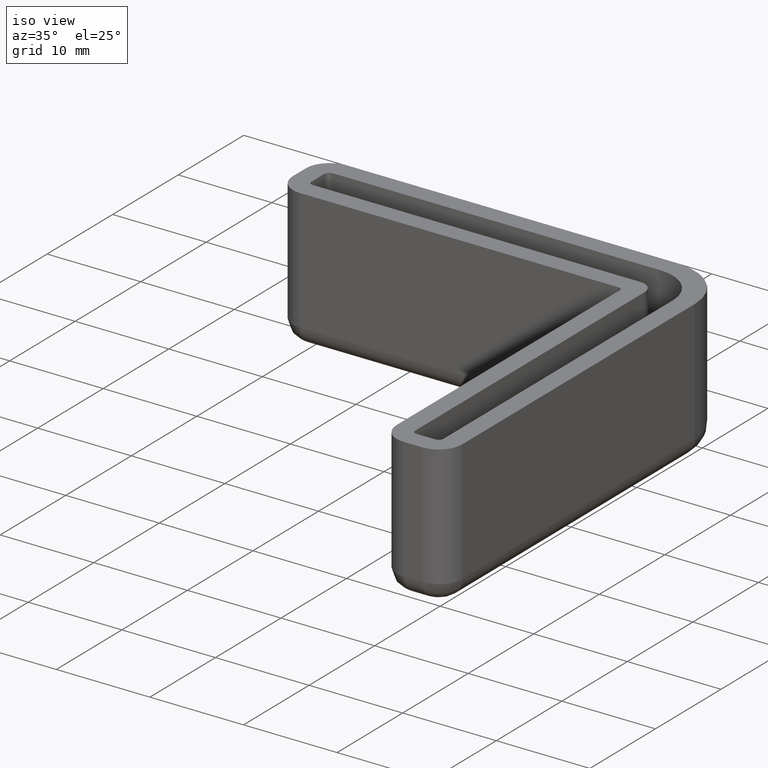
[diagram: clean part render]
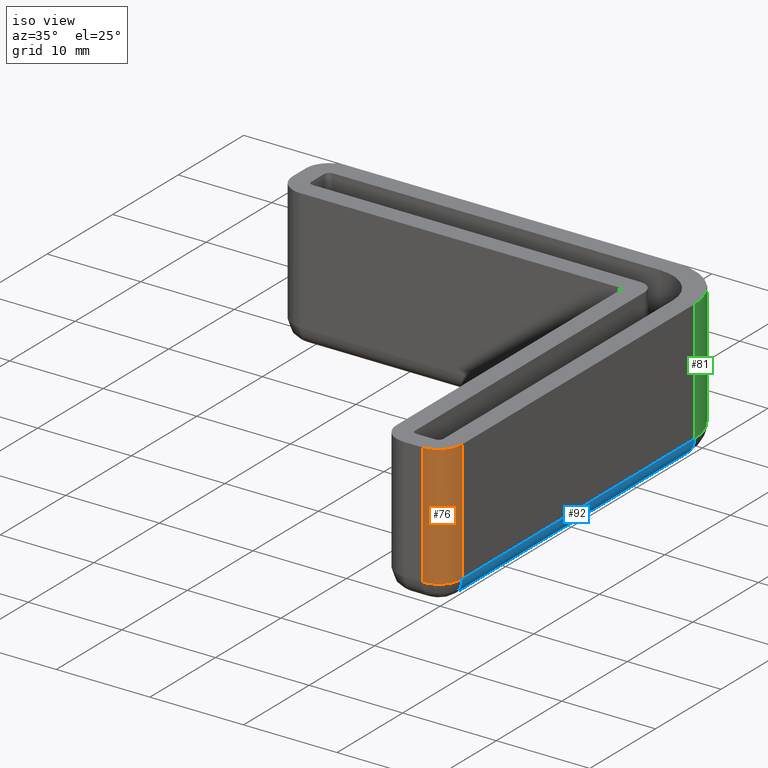
[diagram: same view with three faces highlighted in distinct colors, each labeled with its STEP entity id]
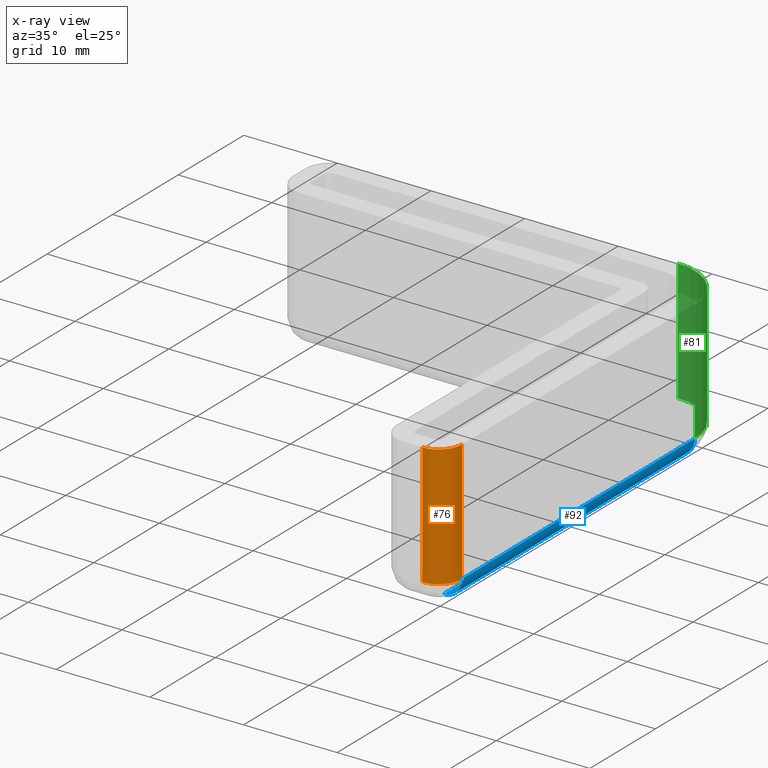
[diagram: x-ray of the same camera — body ghosted, the three highlighted faces saturated]
A machine part, iso view with three faces highlighted in distinct colors.
The next image is the same camera in x-ray (body ghosted, the three faces saturated) — at least one of them is partly hidden behind the body in this view.
Their STEP definitions:

[orange] entity #76 — the highlighted cylindrical surface (edge-blend (fillet) strip) has radius 2.5 mm, axis along (0, 0, -1).
#76 = ADVANCED_FACE( '', ( #118 ), #119, .T. );
#118 = FACE_OUTER_BOUND( '', #197, .T. );
#119 = CYLINDRICAL_SURFACE( '', #198, 2.50000000000000 );
#197 = EDGE_LOOP( '', ( #388, #389, #390, #391 ) );
#198 = AXIS2_PLACEMENT_3D( '', #392, #393, #394 );
#388 = ORIENTED_EDGE( '', *, *, #682, .F. );
#389 = ORIENTED_EDGE( '', *, *, #683, .T. );
#390 = ORIENTED_EDGE( '', *, *, #684, .T. );
#391 = ORIENTED_EDGE( '', *, *, #658, .F. );
#392 = CARTESIAN_POINT( '', ( -0.500000000000003, -39.5000000000000, -15.0000000000000 ) );
#393 = DIRECTION( '', ( 0.000000000000000, 0.000000000000000, -1.00000000000000 ) );
#394 = DIRECTION( '', ( 1.00000000000000, -1.83690953073357E-016, 0.000000000000000 ) );
#658 = EDGE_CURVE( '', #754, #755, #756, .T. );
#682 = EDGE_CURVE( '', #802, #754, #803, .T. );
#683 = EDGE_CURVE( '', #802, #804, #805, .T. );
#684 = EDGE_CURVE( '', #804, #755, #806, .T. );
#754 = VERTEX_POINT( '', #910 );
#755 = VERTEX_POINT( '', #911 );
#756 = CIRCLE( '', #912, 2.50000000000000 );
#802 = VERTEX_POINT( '', #970 );
#803 = LINE( '', #971, #972 );
#804 = VERTEX_POINT( '', #973 );
#805 = CIRCLE( '', #974, 2.50000000000000 );
#806 = LINE( '', #975, #976 );
#910 = CARTESIAN_POINT( '', ( -0.500000000000032, -42.0000000000000, 0.000000000000000 ) );
#911 = CARTESIAN_POINT( '', ( 1.99999999999999, -39.5000000000000, 0.000000000000000 ) );
#912 = AXIS2_PLACEMENT_3D( '', #1120, #1121, #1122 );
#970 = CARTESIAN_POINT( '', ( -0.500000000000032, -42.0000000000000, -13.0000000000000 ) );
#971 = CARTESIAN_POINT( '', ( -0.500000000000032, -42.0000000000000, -15.0000000000000 ) );
#972 = VECTOR( '', #1168, 1000.00000000000 );
#973 = CARTESIAN_POINT( '', ( 1.99999999999999, -39.5000000000000, -13.0000000000000 ) );
#974 = AXIS2_PLACEMENT_3D( '', #1169, #1170, #1171 );
#975 = CARTESIAN_POINT( '', ( 1.99999999999999, -39.5000000000000, -15.0000000000000 ) );
#976 = VECTOR( '', #1172, 1000.00000000000 );
#1120 = CARTESIAN_POINT( '', ( -0.500000000000003, -39.5000000000000, 0.000000000000000 ) );
#1121 = DIRECTION( '', ( 0.000000000000000, 0.000000000000000, 1.00000000000000 ) );
#1122 = DIRECTION( '', ( -3.57163300671037E-016, -1.00000000000000, 0.000000000000000 ) );
#1168 = DIRECTION( '', ( 0.000000000000000, 0.000000000000000, 1.00000000000000 ) );
#1169 = CARTESIAN_POINT( '', ( -0.500000000000003, -39.5000000000000, -13.0000000000000 ) );
#1170 = DIRECTION( '', ( 0.000000000000000, 0.000000000000000, 1.00000000000000 ) );
#1171 = DIRECTION( '', ( -1.00000000000000, 1.22460635382238E-016, 0.000000000000000 ) );
#1172 = DIRECTION( '', ( 0.000000000000000, 0.000000000000000, 1.00000000000000 ) );

[blue] entity #92 — the highlighted cylindrical surface (edge-blend (fillet) strip) has radius 2 mm, axis along (0, 1, 0).
#92 = ADVANCED_FACE( '', ( #150 ), #151, .T. );
#150 = FACE_OUTER_BOUND( '', #229, .T. );
#151 = CYLINDRICAL_SURFACE( '', #230, 2.00000000000000 );
#229 = EDGE_LOOP( '', ( #516, #517, #518, #519 ) );
#230 = AXIS2_PLACEMENT_3D( '', #520, #521, #522 );
#516 = ORIENTED_EDGE( '', *, *, #733, .T. );
#517 = ORIENTED_EDGE( '', *, *, #722, .F. );
#518 = ORIENTED_EDGE( '', *, *, #734, .T. );
#519 = ORIENTED_EDGE( '', *, *, #700, .F. );
#520 = CARTESIAN_POINT( '', ( -7.43928031156360E-015, -39.5000000000000, -13.0000000000000 ) );
#521 = DIRECTION( '', ( 1.83690953073357E-016, 1.00000000000000, 0.000000000000000 ) );
#522 = DIRECTION( '', ( 1.00000000000000, -1.83690953073357E-016, 0.000000000000000 ) );
#700 = EDGE_CURVE( '', #804, #834, #835, .T. );
#722 = EDGE_CURVE( '', #866, #868, #869, .F. );
#733 = EDGE_CURVE( '', #804, #868, #889, .T. );
#734 = EDGE_CURVE( '', #866, #834, #890, .T. );
#804 = VERTEX_POINT( '', #973 );
#834 = VERTEX_POINT( '', #1013 );
#835 = LINE( '', #1014, #1015 );
#866 = VERTEX_POINT( '', #1061 );
#868 = VERTEX_POINT( '', #1063 );
#869 = LINE( '', #1064, #1065 );
#889 = CIRCLE( '', #1090, 2.00000000000000 );
#890 = CIRCLE( '', #1091, 2.00000000000000 );
#973 = CARTESIAN_POINT( '', ( 1.99999999999999, -39.5000000000000, -13.0000000000000 ) );
#1013 = CARTESIAN_POINT( '', ( 2.00000000000000, -4.00000000000001, -13.0000000000000 ) );
#1014 = CARTESIAN_POINT( '', ( 2.00000000000000, -4.00000000000001, -13.0000000000000 ) );
#1015 = VECTOR( '', #1200, 1000.00000000000 );
#1061 = CARTESIAN_POINT( '', ( -9.18251477459443E-016, -4.00000000000001, -15.0000000000000 ) );
#1063 = CARTESIAN_POINT( '', ( -5.00386407656374E-016, -39.5000000000000, -15.0000000000000 ) );
#1064 = CARTESIAN_POINT( '', ( -7.43928031156360E-015, -39.5000000000000, -15.0000000000000 ) );
#1065 = VECTOR( '', #1234, 1000.00000000000 );
#1090 = AXIS2_PLACEMENT_3D( '', #1255, #1256, #1257 );
#1091 = AXIS2_PLACEMENT_3D( '', #1258, #1259, #1260 );
#1200 = DIRECTION( '', ( 1.83690953073357E-016, 1.00000000000000, 0.000000000000000 ) );
#1234 = DIRECTION( '', ( 1.83690953073357E-016, 1.00000000000000, 0.000000000000000 ) );
#1255 = CARTESIAN_POINT( '', ( -5.00386407656373E-016, -39.5000000000000, -13.0000000000000 ) );
#1256 = DIRECTION( '', ( 3.59190758733585E-015, 1.00000000000000, -3.46944695195361E-015 ) );
#1257 = DIRECTION( '', ( -4.24870678161208E-031, -3.46944695195361E-015, -1.00000000000000 ) );
#1258 = CARTESIAN_POINT( '', ( -9.18251477459443E-016, -4.00000000000001, -13.0000000000000 ) );
#1259 = DIRECTION( '', ( -1.22460635382238E-016, -1.00000000000000, 0.000000000000000 ) );
#1260 = DIRECTION( '', ( 0.000000000000000, 0.000000000000000, 1.00000000000000 ) );

[green] entity #81 — the highlighted cylindrical surface (partial cylindrical patch) has radius 6 mm, axis along (0, 0, -1).
#81 = ADVANCED_FACE( '', ( #128 ), #129, .T. );
#128 = FACE_OUTER_BOUND( '', #207, .T. );
#129 = CYLINDRICAL_SURFACE( '', #208, 6.00000000000000 );
#207 = EDGE_LOOP( '', ( #431, #432, #433, #434 ) );
#208 = AXIS2_PLACEMENT_3D( '', #435, #436, #437 );
#431 = ORIENTED_EDGE( '', *, *, #701, .F. );
#432 = ORIENTED_EDGE( '', *, *, #702, .T. );
#433 = ORIENTED_EDGE( '', *, *, #703, .T. );
#434 = ORIENTED_EDGE( '', *, *, #660, .F. );
#435 = CARTESIAN_POINT( '', ( -4.00000000000000, -4.00000000000000, -15.0000000000000 ) );
#436 = DIRECTION( '', ( 0.000000000000000, 0.000000000000000, -1.00000000000000 ) );
#437 = DIRECTION( '', ( 1.00000000000000, -1.83690953073357E-016, 0.000000000000000 ) );
#660 = EDGE_CURVE( '', #757, #759, #760, .T. );
#701 = EDGE_CURVE( '', #834, #757, #836, .T. );
#702 = EDGE_CURVE( '', #834, #837, #838, .T. );
#703 = EDGE_CURVE( '', #837, #759, #839, .T. );
#757 = VERTEX_POINT( '', #913 );
#759 = VERTEX_POINT( '', #916 );
#760 = CIRCLE( '', #917, 6.00000000000000 );
#834 = VERTEX_POINT( '', #1013 );
#836 = LINE( '', #1016, #1017 );
#837 = VERTEX_POINT( '', #1018 );
#838 = CIRCLE( '', #1019, 6.00000000000000 );
#839 = LINE( '', #1020, #1021 );
#913 = CARTESIAN_POINT( '', ( 2.00000000000000, -4.00000000000001, 0.000000000000000 ) );
#916 = CARTESIAN_POINT( '', ( -4.00000000000000, 2.00000000000000, 0.000000000000000 ) );
#917 = AXIS2_PLACEMENT_3D( '', #1124, #1125, #1126 );
#1013 = CARTESIAN_POINT( '', ( 2.00000000000000, -4.00000000000001, -13.0000000000000 ) );
#1016 = CARTESIAN_POINT( '', ( 2.00000000000000, -4.00000000000001, -15.0000000000000 ) );
#1017 = VECTOR( '', #1201, 1000.00000000000 );
#1018 = CARTESIAN_POINT( '', ( -4.00000000000000, 2.00000000000000, -13.0000000000000 ) );
#1019 = AXIS2_PLACEMENT_3D( '', #1202, #1203, #1204 );
#1020 = CARTESIAN_POINT( '', ( -4.00000000000000, 2.00000000000000, -15.0000000000000 ) );
#1021 = VECTOR( '', #1205, 1000.00000000000 );
#1124 = CARTESIAN_POINT( '', ( -4.00000000000000, -4.00000000000000, 0.000000000000000 ) );
#1125 = DIRECTION( '', ( 0.000000000000000, 0.000000000000000, 1.00000000000000 ) );
#1126 = DIRECTION( '', ( 1.00000000000000, -1.83690953073357E-016, 0.000000000000000 ) );
#1201 = DIRECTION( '', ( 0.000000000000000, 0.000000000000000, 1.00000000000000 ) );
#1202 = CARTESIAN_POINT( '', ( -4.00000000000000, -4.00000000000000, -13.0000000000000 ) );
#1203 = DIRECTION( '', ( 0.000000000000000, 0.000000000000000, 1.00000000000000 ) );
#1204 = DIRECTION( '', ( -1.00000000000000, 1.22460635382238E-016, 0.000000000000000 ) );
#1205 = DIRECTION( '', ( 0.000000000000000, 0.000000000000000, 1.00000000000000 ) );